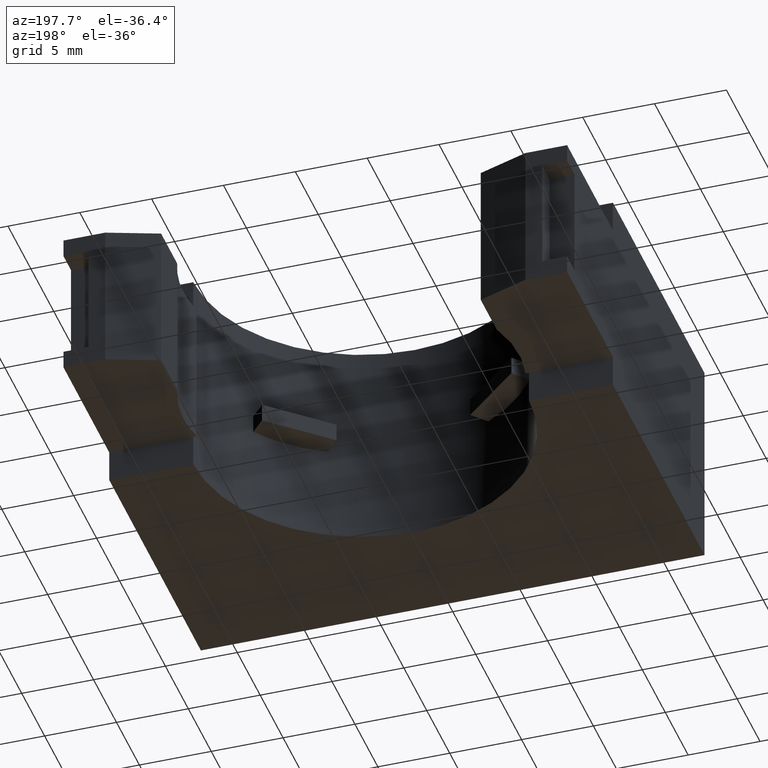
[diagram: clean part render]
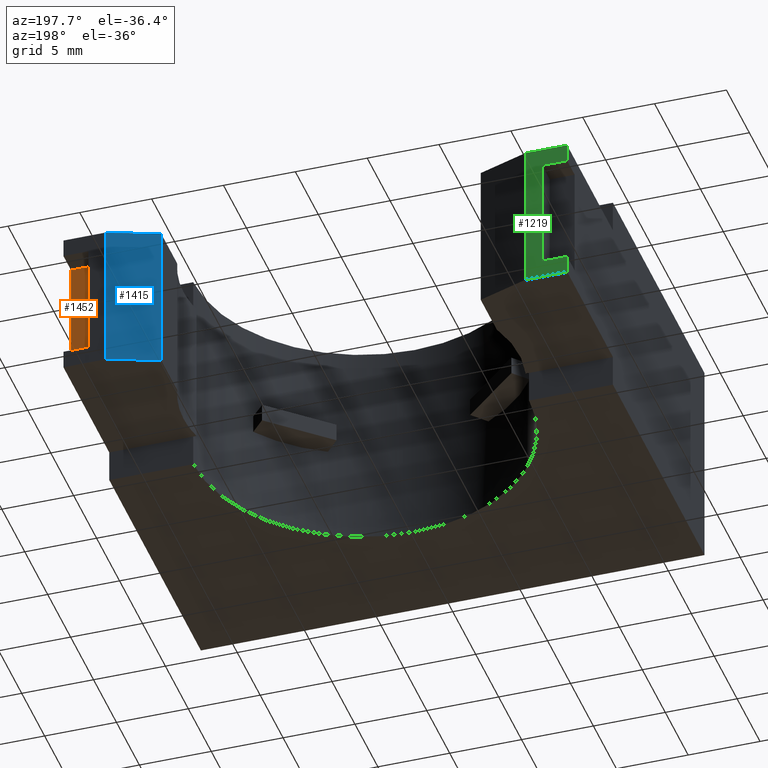
[diagram: same view with three faces highlighted in distinct colors, each labeled with its STEP entity id]
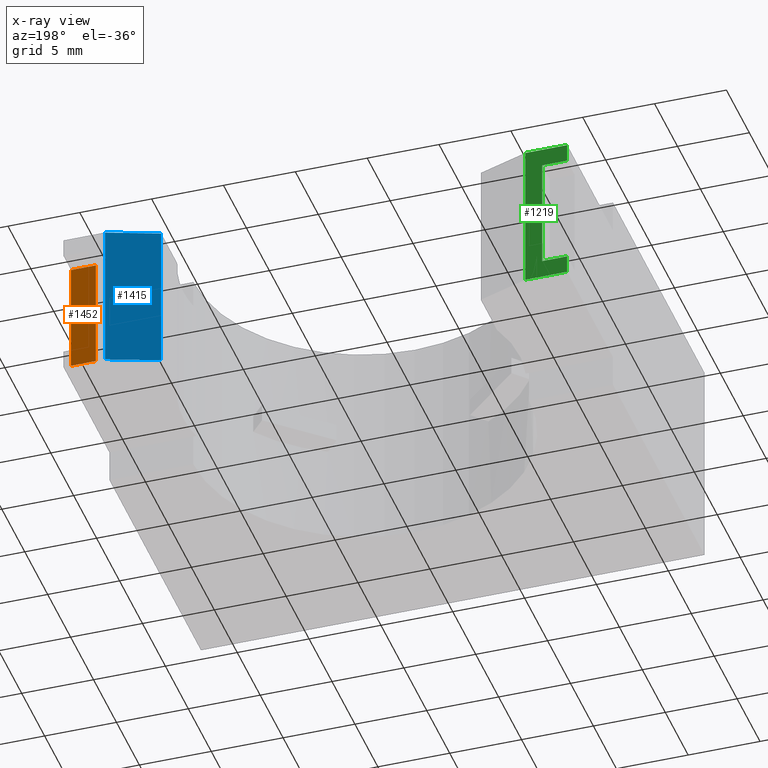
[diagram: x-ray of the same camera — body ghosted, the three highlighted faces saturated]
A machine part, auxiliary view with three faces highlighted in distinct colors.
The next image is the same camera in x-ray (body ghosted, the three faces saturated) — at least one of them is partly hidden behind the body in this view.
Their STEP definitions:

[orange] entity #1452 — the highlighted planar face has unit normal (0, -1, 0).
#43 = CARTESIAN_POINT ( 'NONE',  ( 0.6900000000000006100, 0.5249999999999993600, 0.4502250000000003200 ) ) ;
#44 = DIRECTION ( 'NONE',  ( -0.0000000000000000000, -0.0000000000000000000, -1.000000000000000000 ) ) ;
#45 = VECTOR ( 'NONE', #44, 39.37007874015748100 ) ;
#46 = CARTESIAN_POINT ( 'NONE',  ( 0.6900000000000006100, 0.5249999999999993600, 0.1397749999999995400 ) ) ;
#47 = LINE ( 'NONE', #46, #45 ) ;
#74 = CARTESIAN_POINT ( 'NONE',  ( 0.6900000000000006100, 0.5249999999999993600, 0.1397749999999995400 ) ) ;
#358 = DIRECTION ( 'NONE',  ( 0.0000000000000000000, -0.0000000000000000000, -1.000000000000000000 ) ) ;
#359 = DIRECTION ( 'NONE',  ( 0.0000000000000000000, -1.000000000000000000, 0.0000000000000000000 ) ) ;
#360 = AXIS2_PLACEMENT_3D ( 'NONE', #361, #359, #358 ) ;
#361 = CARTESIAN_POINT ( 'NONE',  ( 0.6900000000000006100, 0.5249999999999993600, 0.4502250000000003200 ) ) ;
#362 = PLANE ( 'NONE',  #360 ) ;
#363 = FACE_OUTER_BOUND ( 'NONE', #1453, .T. ) ;
#364 = CARTESIAN_POINT ( 'NONE',  ( 0.6218353199999990800, 0.5249999999999993600, 0.1397749999999995400 ) ) ;
#365 = DIRECTION ( 'NONE',  ( -1.000000000000000000, 0.0000000000000000000, 0.0000000000000000000 ) ) ;
#366 = VECTOR ( 'NONE', #365, 39.37007874015748100 ) ;
#367 = CARTESIAN_POINT ( 'NONE',  ( 0.6900000000000006100, 0.5249999999999993600, 0.1397749999999995400 ) ) ;
#371 = LINE ( 'NONE', #367, #366 ) ;
#700 = ORIENTED_EDGE ( 'NONE', *, *, #1448, .T. ) ;
#701 = ORIENTED_EDGE ( 'NONE', *, *, #1568, .T. ) ;
#702 = ORIENTED_EDGE ( 'NONE', *, *, #1603, .T. ) ;
#813 = DIRECTION ( 'NONE',  ( 0.0000000000000000000, 0.0000000000000000000, 1.000000000000000000 ) ) ;
#814 = VECTOR ( 'NONE', #813, 39.37007874015748100 ) ;
#815 = CARTESIAN_POINT ( 'NONE',  ( 0.6218353199999990800, 0.5249999999999993600, 0.1397749999999995400 ) ) ;
#816 = LINE ( 'NONE', #815, #814 ) ;
#970 = CARTESIAN_POINT ( 'NONE',  ( 0.6218353199999990800, 0.5249999999999993600, 0.4502250000000003200 ) ) ;
#971 = DIRECTION ( 'NONE',  ( 1.000000000000000000, -0.0000000000000000000, -0.0000000000000000000 ) ) ;
#972 = VECTOR ( 'NONE', #971, 39.37007874015748100 ) ;
#973 = CARTESIAN_POINT ( 'NONE',  ( 0.6900000000000006100, 0.5249999999999993600, 0.4502250000000003200 ) ) ;
#974 = LINE ( 'NONE', #973, #972 ) ;
#1298 = EDGE_CURVE ( 'NONE', #1299, #1317, #47, .T. ) ;
#1299 = VERTEX_POINT ( 'NONE', #43 ) ;
#1317 = VERTEX_POINT ( 'NONE', #74 ) ;
#1448 = EDGE_CURVE ( 'NONE', #1317, #1450, #371, .T. ) ;
#1450 = VERTEX_POINT ( 'NONE', #364 ) ;
#1452 = ADVANCED_FACE ( 'NONE', ( #363 ), #362, .F. ) ;
#1453 = EDGE_LOOP ( 'NONE', ( #1454, #700, #701, #702 ) ) ;
#1454 = ORIENTED_EDGE ( 'NONE', *, *, #1298, .T. ) ;
#1568 = EDGE_CURVE ( 'NONE', #1450, #1604, #816, .T. ) ;
#1603 = EDGE_CURVE ( 'NONE', #1604, #1299, #974, .T. ) ;
#1604 = VERTEX_POINT ( 'NONE', #970 ) ;

[blue] entity #1415 — the highlighted planar face has unit normal (0.331, -0.9436, 0).
#421 = DIRECTION ( 'NONE',  ( 0.9436468849952338600, 0.3309540095523725300, 0.0000000000000000000 ) ) ;
#422 = DIRECTION ( 'NONE',  ( 0.3309540095523725300, -0.9436468849952338600, 0.0000000000000000000 ) ) ;
#423 = CARTESIAN_POINT ( 'NONE',  ( 0.4378125000000004400, 0.5416666666666660700, 0.0000000000000000000 ) ) ;
#424 = AXIS2_PLACEMENT_3D ( 'NONE', #423, #422, #421 ) ;
#425 = PLANE ( 'NONE',  #424 ) ;
#427 = FACE_OUTER_BOUND ( 'NONE', #1416, .T. ) ;
#871 = CARTESIAN_POINT ( 'NONE',  ( 0.5756249999999988300, 0.5899999999999991900, 0.5004500000000002800 ) ) ;
#982 = DIRECTION ( 'NONE',  ( 0.9436468849952338600, 0.3309540095523725300, 5.746500298670288400E-017 ) ) ;
#983 = VECTOR ( 'NONE', #982, 39.37007874015748900 ) ;
#984 = CARTESIAN_POINT ( 'NONE',  ( 0.4378125000000004400, 0.5416666666666660700, 0.5004500000000002800 ) ) ;
#985 = LINE ( 'NONE', #984, #983 ) ;
#986 = CARTESIAN_POINT ( 'NONE',  ( 0.4378125000000004400, 0.5416666666666660700, 0.5004500000000002800 ) ) ;
#987 = DIRECTION ( 'NONE',  ( -0.0000000000000000000, -0.0000000000000000000, 1.000000000000000000 ) ) ;
#988 = VECTOR ( 'NONE', #987, 39.37007874015748100 ) ;
#989 = CARTESIAN_POINT ( 'NONE',  ( 0.4378125000000004400, 0.5416666666666660700, 0.0000000000000000000 ) ) ;
#990 = LINE ( 'NONE', #989, #988 ) ;
#991 = CARTESIAN_POINT ( 'NONE',  ( 0.4378125000000004400, 0.5416666666666660700, 0.08954999999999978300 ) ) ;
#992 = DIRECTION ( 'NONE',  ( -0.9436468849952338600, -0.3309540095523725300, -4.309875224002717500E-017 ) ) ;
#993 = VECTOR ( 'NONE', #992, 39.37007874015748900 ) ;
#994 = CARTESIAN_POINT ( 'NONE',  ( 0.4378125000000004400, 0.5416666666666660700, 0.08954999999999978300 ) ) ;
#1000 = LINE ( 'NONE', #994, #993 ) ;
#1021 = DIRECTION ( 'NONE',  ( -0.0000000000000000000, -0.0000000000000000000, 1.000000000000000000 ) ) ;
#1022 = VECTOR ( 'NONE', #1021, 39.37007874015748100 ) ;
#1023 = CARTESIAN_POINT ( 'NONE',  ( 0.5756250000000005000, 0.5899999999999994100, 0.0000000000000000000 ) ) ;
#1024 = LINE ( 'NONE', #1023, #1022 ) ;
#1026 = CARTESIAN_POINT ( 'NONE',  ( 0.5756250000000006100, 0.5899999999999994100, 0.08954999999999978300 ) ) ;
#1415 = ADVANCED_FACE ( 'NONE', ( #427 ), #425, .F. ) ;
#1416 = EDGE_LOOP ( 'NONE', ( #1417, #1418, #1536, #1539 ) ) ;
#1417 = ORIENTED_EDGE ( 'NONE', *, *, #1677, .F. ) ;
#1418 = ORIENTED_EDGE ( 'NONE', *, *, #1534, .T. ) ;
#1511 = VERTEX_POINT ( 'NONE', #871 ) ;
#1534 = EDGE_CURVE ( 'NONE', #1674, #1535, #1000, .T. ) ;
#1535 = VERTEX_POINT ( 'NONE', #991 ) ;
#1536 = ORIENTED_EDGE ( 'NONE', *, *, #1537, .T. ) ;
#1537 = EDGE_CURVE ( 'NONE', #1535, #1538, #990, .T. ) ;
#1538 = VERTEX_POINT ( 'NONE', #986 ) ;
#1539 = ORIENTED_EDGE ( 'NONE', *, *, #1540, .T. ) ;
#1540 = EDGE_CURVE ( 'NONE', #1538, #1511, #985, .T. ) ;
#1674 = VERTEX_POINT ( 'NONE', #1026 ) ;
#1677 = EDGE_CURVE ( 'NONE', #1674, #1511, #1024, .T. ) ;

[green] entity #1219 — the highlighted planar face has unit normal (0, -1, 0).
#26 = DIRECTION ( 'NONE',  ( -0.0000000000000000000, -0.0000000000000000000, -1.000000000000000000 ) ) ;
#27 = VECTOR ( 'NONE', #26, 39.37007874015748100 ) ;
#28 = CARTESIAN_POINT ( 'NONE',  ( -0.6899999999999996100, 0.5899999999999993000, 0.5899999999999999700 ) ) ;
#29 = LINE ( 'NONE', #28, #27 ) ;
#38 = DIRECTION ( 'NONE',  ( 1.000000000000000000, -0.0000000000000000000, -0.0000000000000000000 ) ) ;
#39 = VECTOR ( 'NONE', #38, 39.37007874015748100 ) ;
#40 = CARTESIAN_POINT ( 'NONE',  ( -0.6899999999999996100, 0.5899999999999994100, 0.08954999999999978300 ) ) ;
#41 = LINE ( 'NONE', #40, #39 ) ;
#42 = CARTESIAN_POINT ( 'NONE',  ( -0.5756250000000005000, 0.5899999999999994100, 0.08954999999999978300 ) ) ;
#58 = CARTESIAN_POINT ( 'NONE',  ( -0.6899999999999996100, 0.5899999999999994100, 0.4502250000000001000 ) ) ;
#59 = DIRECTION ( 'NONE',  ( 1.000000000000000000, 0.0000000000000000000, 0.0000000000000000000 ) ) ;
#60 = VECTOR ( 'NONE', #59, 39.37007874015748100 ) ;
#61 = CARTESIAN_POINT ( 'NONE',  ( -0.6899999999999996100, 0.5899999999999994100, 0.4502250000000001000 ) ) ;
#62 = LINE ( 'NONE', #61, #60 ) ;
#123 = CARTESIAN_POINT ( 'NONE',  ( -0.6218353199999980800, 0.5899999999999994100, 0.1397750000000000400 ) ) ;
#155 = CARTESIAN_POINT ( 'NONE',  ( -0.6899999999999996100, 0.5899999999999994100, 0.5004500000000002800 ) ) ;
#156 = DIRECTION ( 'NONE',  ( -0.0000000000000000000, -0.0000000000000000000, -1.000000000000000000 ) ) ;
#157 = VECTOR ( 'NONE', #156, 39.37007874015748100 ) ;
#158 = CARTESIAN_POINT ( 'NONE',  ( -0.6899999999999996100, 0.5899999999999993000, 0.5899999999999999700 ) ) ;
#220 = DIRECTION ( 'NONE',  ( 1.000000000000000000, 9.897999977044436900E-017, 0.0000000000000000000 ) ) ;
#221 = DIRECTION ( 'NONE',  ( 9.897999977044436900E-017, -1.000000000000000000, 0.0000000000000000000 ) ) ;
#222 = AXIS2_PLACEMENT_3D ( 'NONE', #223, #221, #220 ) ;
#223 = CARTESIAN_POINT ( 'NONE',  ( -0.6899999999999996100, 0.5899999999999993000, 0.5899999999999999700 ) ) ;
#224 = PLANE ( 'NONE',  #222 ) ;
#225 = FACE_OUTER_BOUND ( 'NONE', #1220, .T. ) ;
#287 = CARTESIAN_POINT ( 'NONE',  ( -0.5756250000000011600, 0.5899999999999995200, 0.5004500000000002800 ) ) ;
#288 = DIRECTION ( 'NONE',  ( 1.000000000000000000, -0.0000000000000000000, -0.0000000000000000000 ) ) ;
#289 = VECTOR ( 'NONE', #288, 39.37007874015748100 ) ;
#290 = CARTESIAN_POINT ( 'NONE',  ( -0.6899999999999996100, 0.5899999999999994100, 0.5004500000000002800 ) ) ;
#291 = LINE ( 'NONE', #290, #289 ) ;
#292 = DIRECTION ( 'NONE',  ( -0.0000000000000000000, -0.0000000000000000000, -1.000000000000000000 ) ) ;
#293 = VECTOR ( 'NONE', #292, 39.37007874015748100 ) ;
#294 = CARTESIAN_POINT ( 'NONE',  ( -0.6218353199999980800, 0.5899999999999994100, 0.1397750000000000400 ) ) ;
#295 = LINE ( 'NONE', #294, #293 ) ;
#505 = DIRECTION ( 'NONE',  ( -0.0000000000000000000, -0.0000000000000000000, 1.000000000000000000 ) ) ;
#506 = VECTOR ( 'NONE', #505, 39.37007874015748100 ) ;
#507 = CARTESIAN_POINT ( 'NONE',  ( -0.5756250000000005000, 0.5899999999999994100, 0.0000000000000000000 ) ) ;
#508 = LINE ( 'NONE', #507, #506 ) ;
#648 = LINE ( 'NONE', #158, #157 ) ;
#719 = DIRECTION ( 'NONE',  ( -1.000000000000000000, -0.0000000000000000000, 2.504823606653954500E-016 ) ) ;
#720 = VECTOR ( 'NONE', #719, 39.37007874015748100 ) ;
#721 = CARTESIAN_POINT ( 'NONE',  ( -0.6899999999999996100, 0.5899999999999994100, 0.1397750000000000700 ) ) ;
#722 = LINE ( 'NONE', #721, #720 ) ;
#723 = CARTESIAN_POINT ( 'NONE',  ( -0.6899999999999996100, 0.5899999999999994100, 0.08954999999999978300 ) ) ;
#724 = CARTESIAN_POINT ( 'NONE',  ( -0.6899999999999996100, 0.5899999999999994100, 0.1397750000000000700 ) ) ;
#757 = CARTESIAN_POINT ( 'NONE',  ( -0.6218353199999980800, 0.5899999999999994100, 0.4502250000000001000 ) ) ;
#1140 = VERTEX_POINT ( 'NONE', #757 ) ;
#1141 = ORIENTED_EDGE ( 'NONE', *, *, #1289, .F. ) ;
#1154 = VERTEX_POINT ( 'NONE', #724 ) ;
#1155 = VERTEX_POINT ( 'NONE', #723 ) ;
#1156 = ORIENTED_EDGE ( 'NONE', *, *, #1157, .F. ) ;
#1157 = EDGE_CURVE ( 'NONE', #1287, #1154, #722, .T. ) ;
#1198 = EDGE_CURVE ( 'NONE', #1199, #1290, #648, .T. ) ;
#1199 = VERTEX_POINT ( 'NONE', #155 ) ;
#1219 = ADVANCED_FACE ( 'NONE', ( #225 ), #224, .F. ) ;
#1220 = EDGE_LOOP ( 'NONE', ( #1221, #1156, #1288, #1141, #1291, #1316, #1354, #1301 ) ) ;
#1221 = ORIENTED_EDGE ( 'NONE', *, *, #1222, .F. ) ;
#1222 = EDGE_CURVE ( 'NONE', #1154, #1155, #29, .T. ) ;
#1287 = VERTEX_POINT ( 'NONE', #123 ) ;
#1288 = ORIENTED_EDGE ( 'NONE', *, *, #1351, .F. ) ;
#1289 = EDGE_CURVE ( 'NONE', #1290, #1140, #62, .T. ) ;
#1290 = VERTEX_POINT ( 'NONE', #58 ) ;
#1291 = ORIENTED_EDGE ( 'NONE', *, *, #1198, .F. ) ;
#1300 = VERTEX_POINT ( 'NONE', #42 ) ;
#1301 = ORIENTED_EDGE ( 'NONE', *, *, #1302, .F. ) ;
#1302 = EDGE_CURVE ( 'NONE', #1155, #1300, #41, .T. ) ;
#1316 = ORIENTED_EDGE ( 'NONE', *, *, #1352, .T. ) ;
#1351 = EDGE_CURVE ( 'NONE', #1140, #1287, #295, .T. ) ;
#1352 = EDGE_CURVE ( 'NONE', #1199, #1353, #291, .T. ) ;
#1353 = VERTEX_POINT ( 'NONE', #287 ) ;
#1354 = ORIENTED_EDGE ( 'NONE', *, *, #1355, .F. ) ;
#1355 = EDGE_CURVE ( 'NONE', #1300, #1353, #508, .T. ) ;